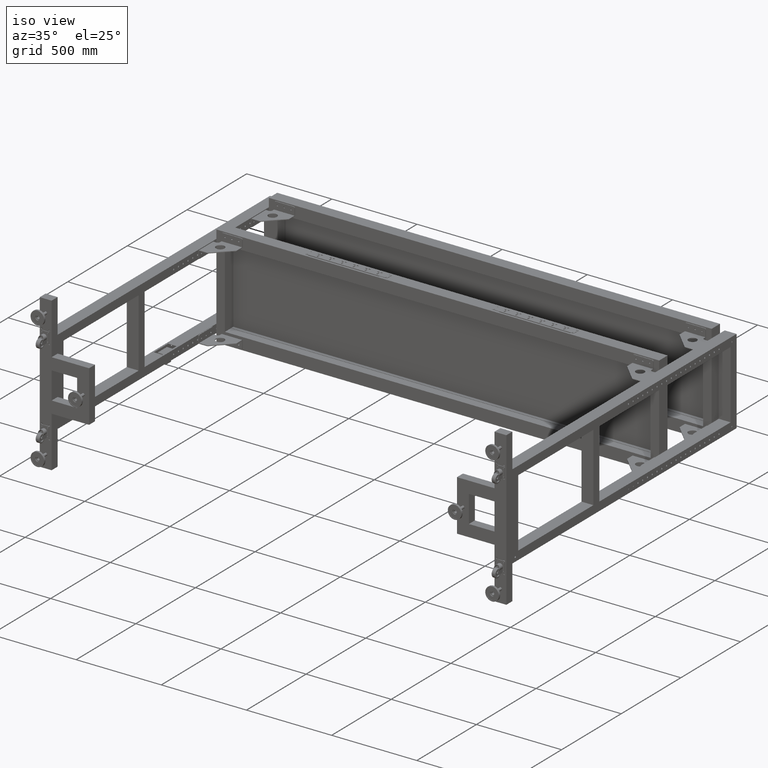
[diagram: clean part render]
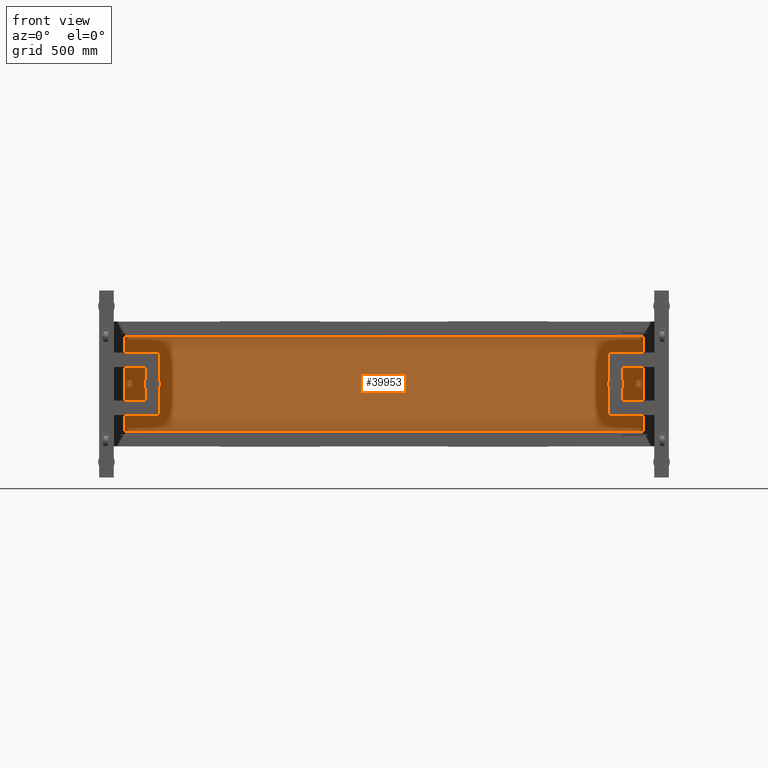
[diagram: tour spotlight — one face highlighted and labeled with its STEP entity id]
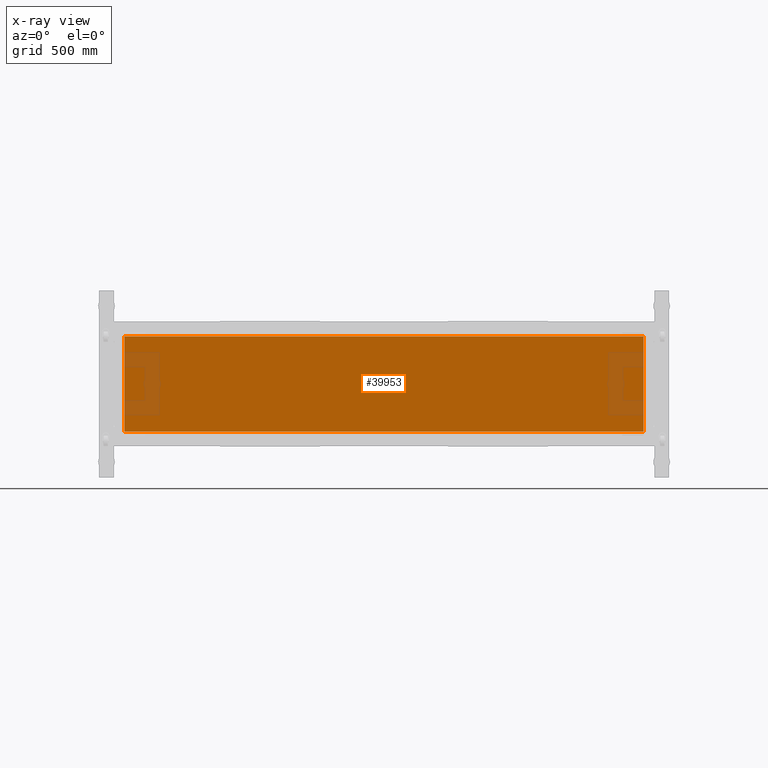
[diagram: x-ray of the same camera — body ghosted, this tour face saturated]
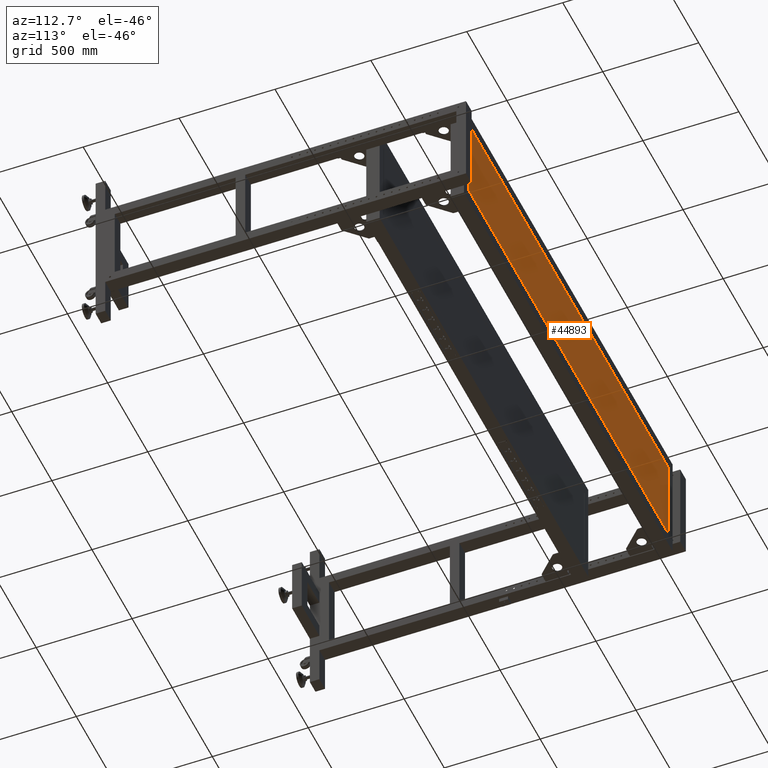
[diagram: tour spotlight — one face highlighted and labeled with its STEP entity id]
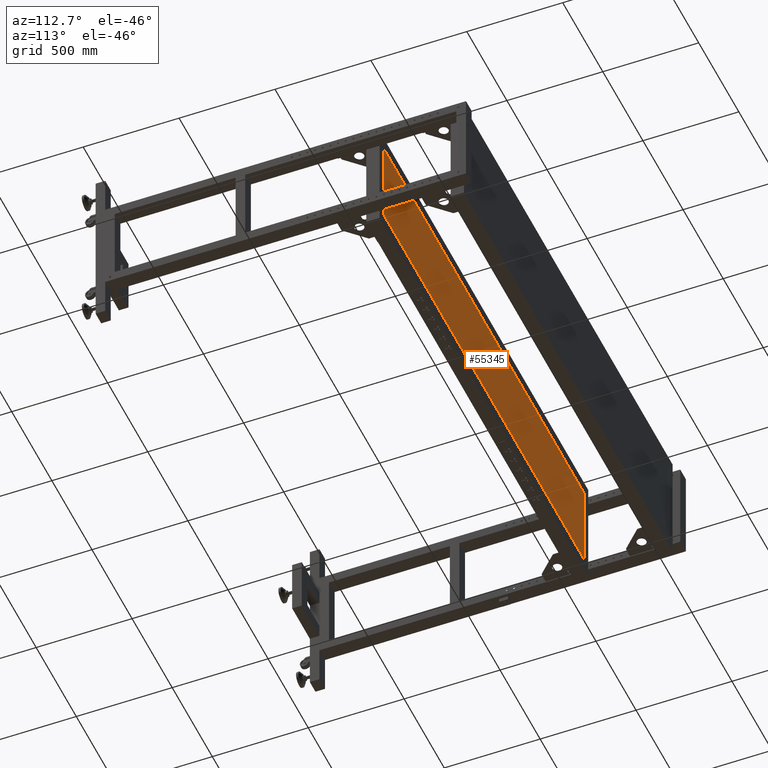
[diagram: tour spotlight — one face highlighted and labeled with its STEP entity id]
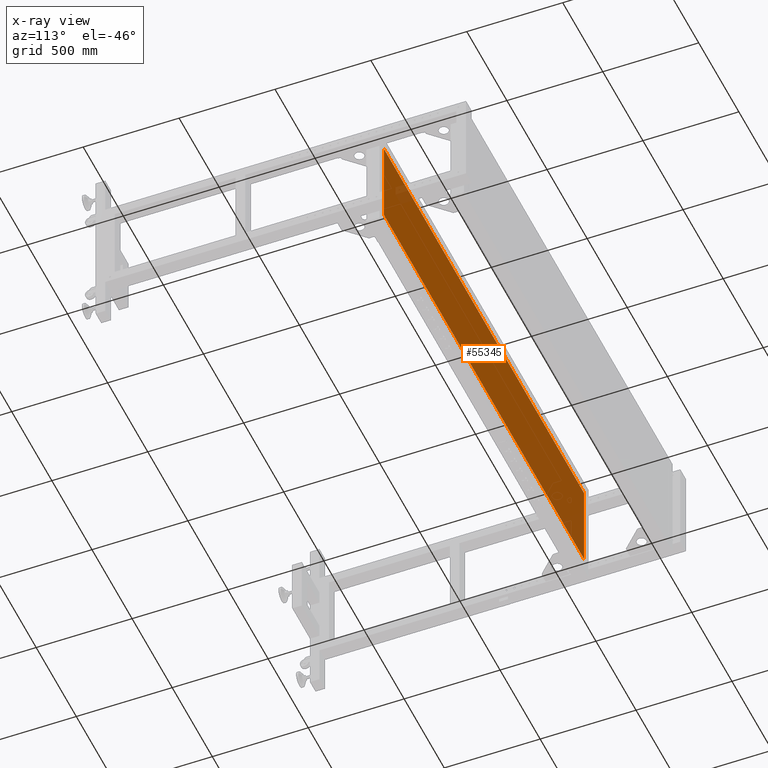
[diagram: x-ray of the same camera — body ghosted, this tour face saturated]
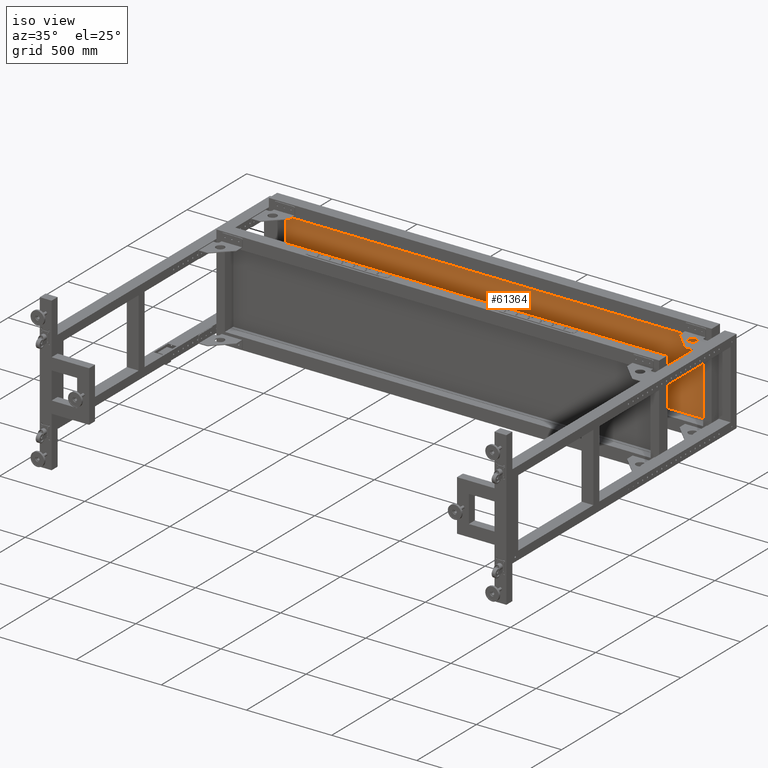
[diagram: tour spotlight — one face highlighted and labeled with its STEP entity id]
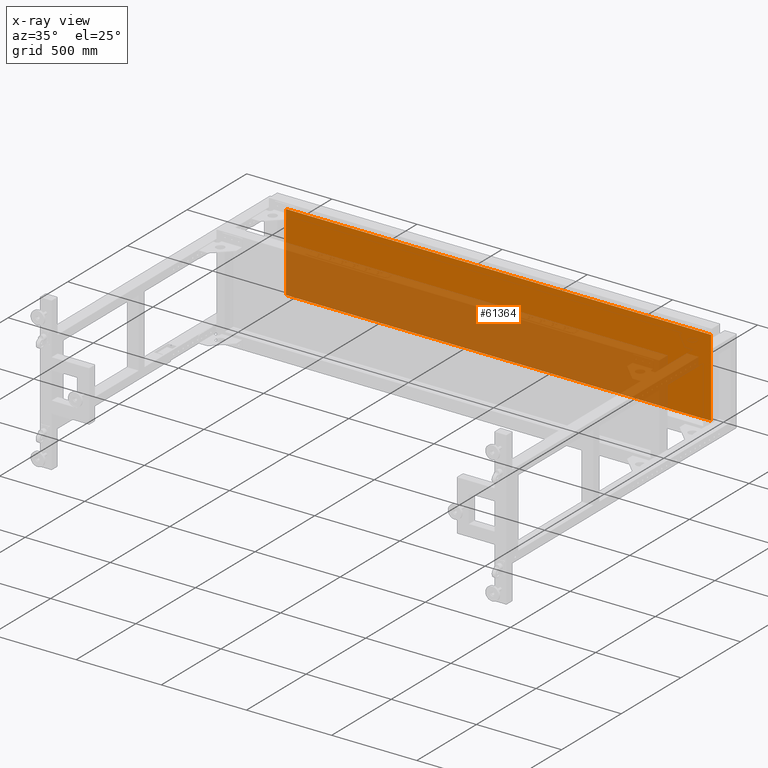
[diagram: x-ray of the same camera — body ghosted, this tour face saturated]
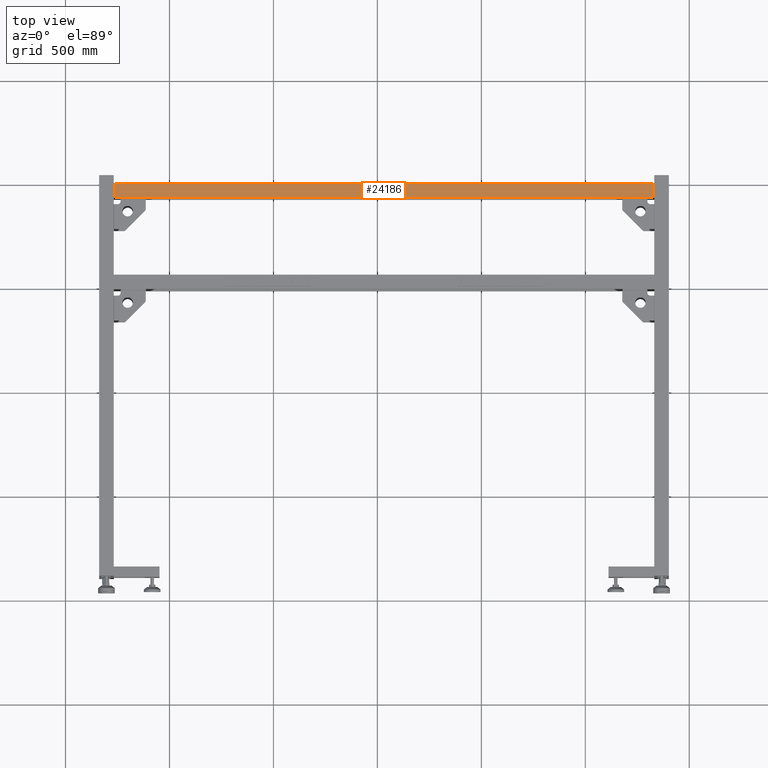
[diagram: tour spotlight — one face highlighted and labeled with its STEP entity id]
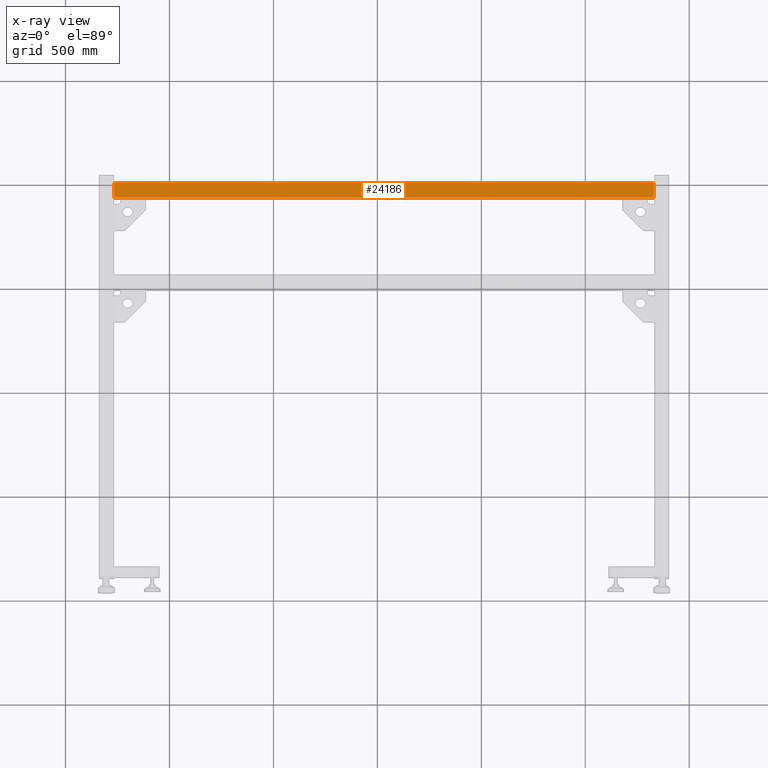
[diagram: x-ray of the same camera — body ghosted, this tour face saturated]
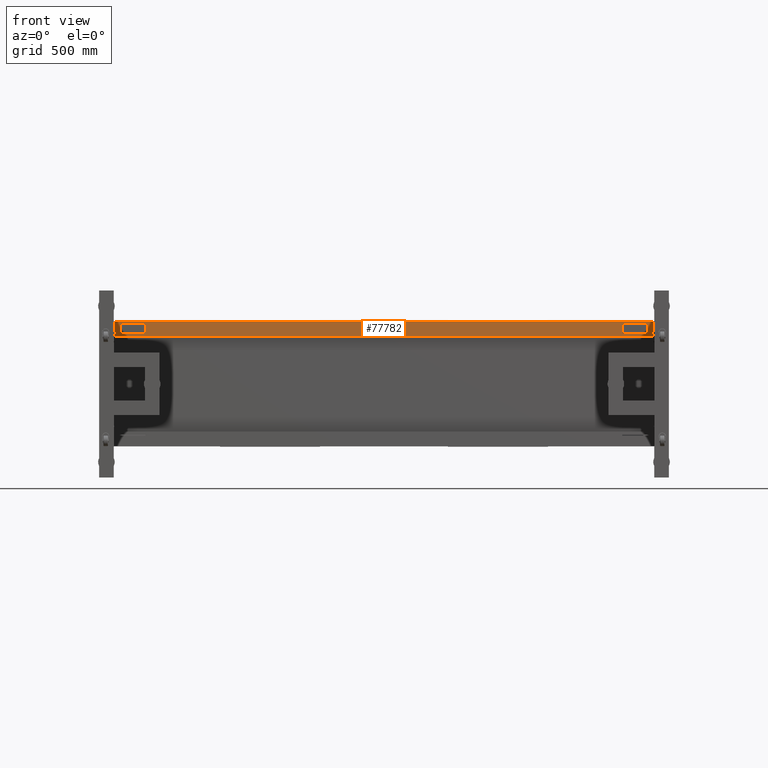
[diagram: tour spotlight — one face highlighted and labeled with its STEP entity id]
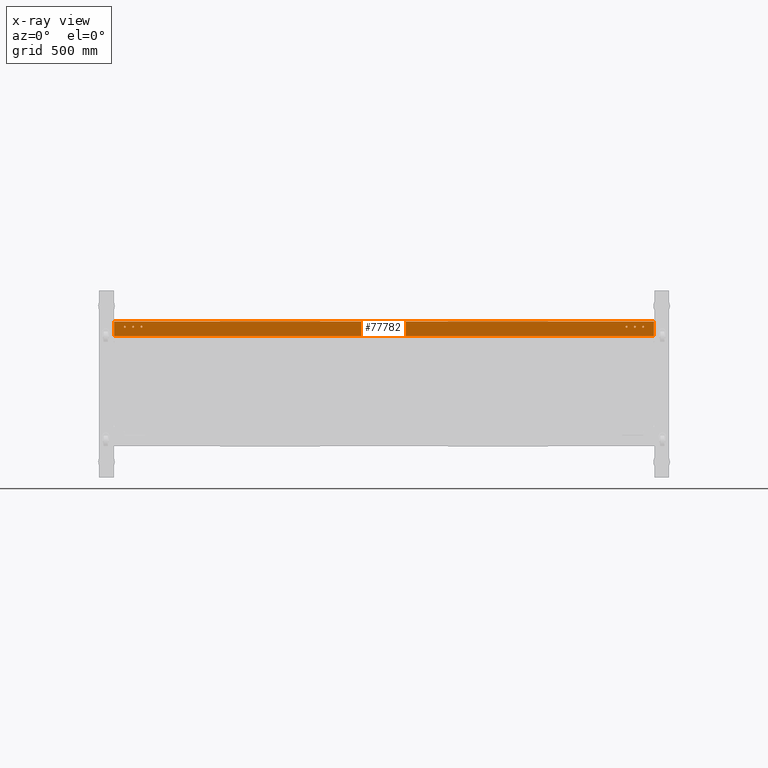
[diagram: x-ray of the same camera — body ghosted, this tour face saturated]
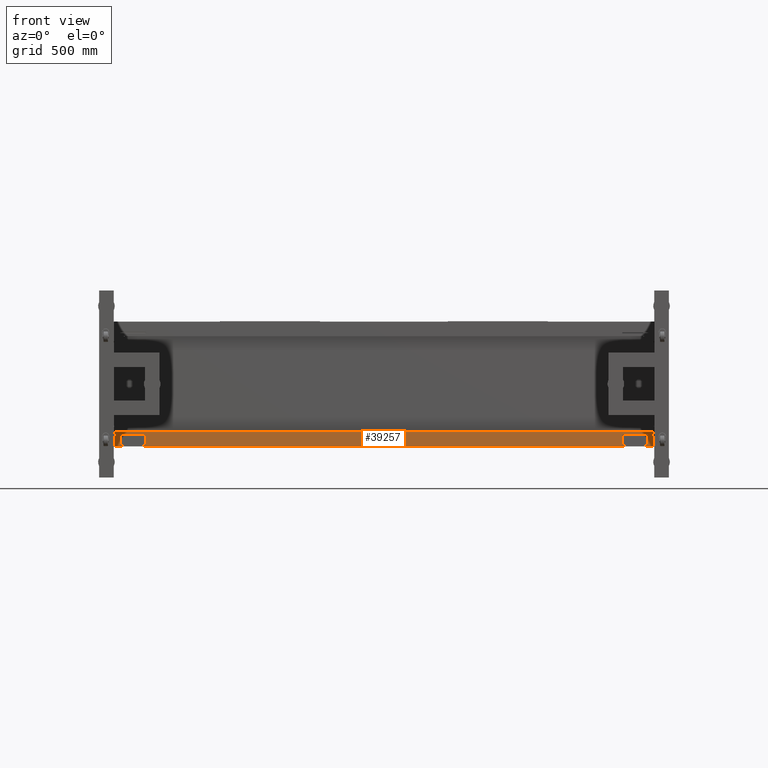
[diagram: tour spotlight — one face highlighted and labeled with its STEP entity id]
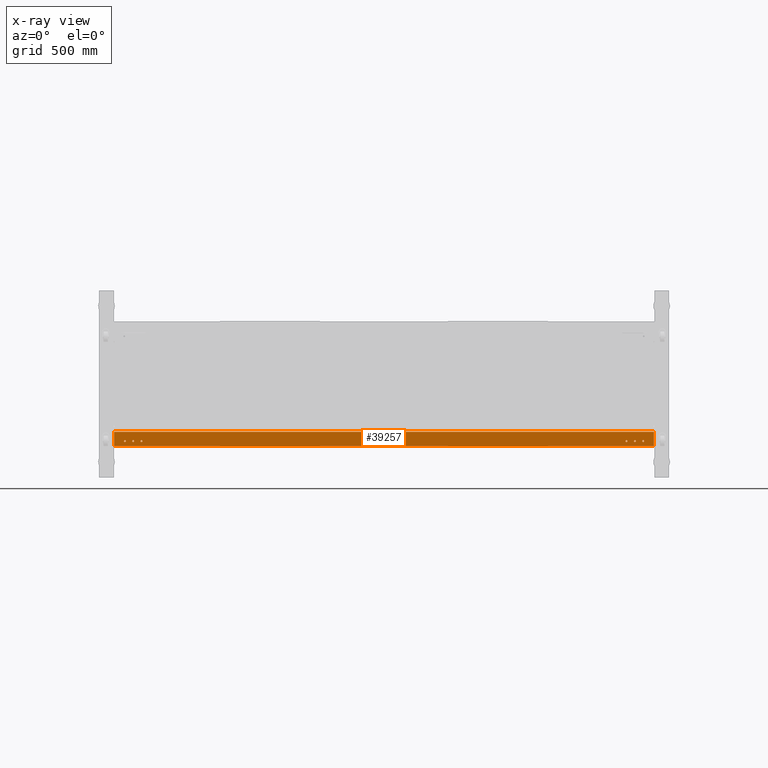
[diagram: x-ray of the same camera — body ghosted, this tour face saturated]
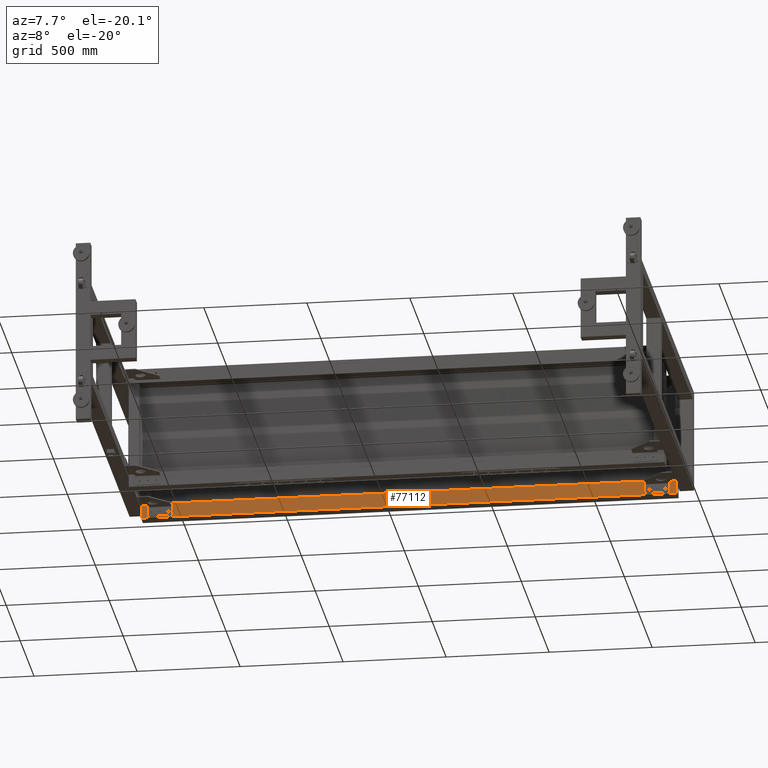
[diagram: tour spotlight — one face highlighted and labeled with its STEP entity id]
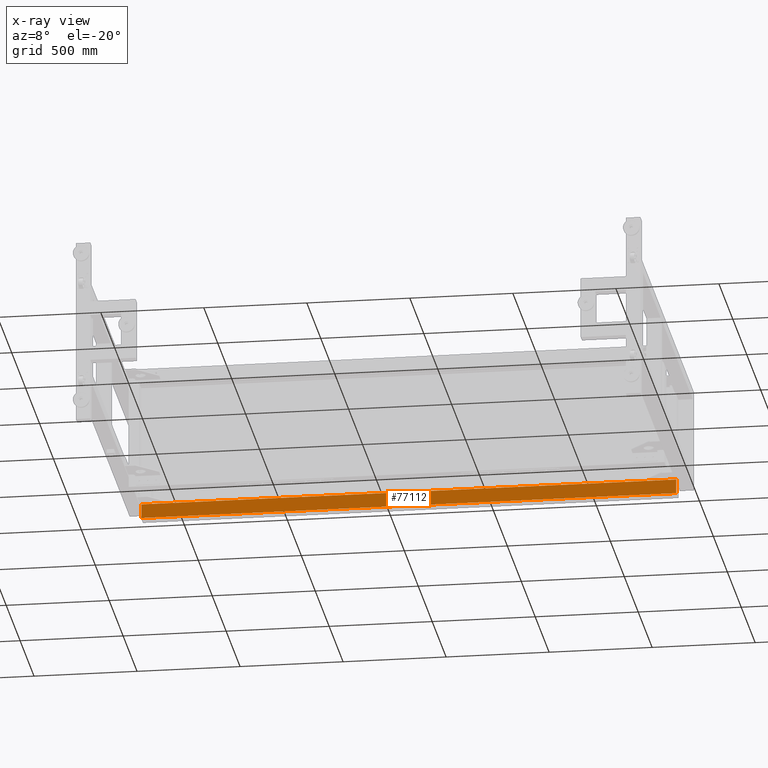
[diagram: x-ray of the same camera — body ghosted, this tour face saturated]
A machine part: a face-by-face anatomy tour. The part has 2555 B-rep faces; the first image is the clean iso view, then the 8 largest visible faces are spotlighted one at a time (largest first), each with its STEP entity span.

Face 1 — front view, entity #39953. An x-ray twin of the same camera follows (body ghosted, this face saturated) — the face is partly hidden behind the body. In plain terms, the highlighted planar face has unit normal (-0, 1, -0).
Definition (entity closure, byte-faithful):
#1031 = ORIENTED_EDGE ( 'NONE', *, *, #65818, .F. ) ;
#1144 = VERTEX_POINT ( 'NONE', #2076 ) ;
#2076 = CARTESIAN_POINT ( 'NONE',  ( 1280.317512562815864, 555.4410804020127443, -228.4899999999998954 ) ) ;
#6296 = ORIENTED_EDGE ( 'NONE', *, *, #29893, .T. ) ;
#6955 = EDGE_LOOP ( 'NONE', ( #8129, #1031, #62932, #6296 ) ) ;
#8129 = ORIENTED_EDGE ( 'NONE', *, *, #68477, .T. ) ;
#8204 = DIRECTION ( 'NONE',  ( 1.000000000000000000, 2.399989573374237993E-16, 0.000000000000000000 ) ) ;
#8607 = VECTOR ( 'NONE', #37894, 1000.000000000000000 ) ;
#16177 = CARTESIAN_POINT ( 'NONE',  ( 1280.317512562815864, 555.4410804020127443, -228.4899999999998954 ) ) ;
#19455 = CARTESIAN_POINT ( 'NONE',  ( -1216.662487437185973, 555.4410804020128580, 228.4900000000081093 ) ) ;
#20642 = DIRECTION ( 'NONE',  ( -2.399989573374239092E-31, 1.000000000000000472E-15, 1.000000000000000000 ) ) ;
#26593 = LINE ( 'NONE', #51150, #49807 ) ;
#28444 = DIRECTION ( 'NONE',  ( -2.399989573374239092E-31, 1.000000000000000472E-15, 1.000000000000000000 ) ) ;
#29893 = EDGE_CURVE ( 'NONE', #1144, #36823, #75762, .T. ) ;
#30938 = VECTOR ( 'NONE', #20642, 1000.000000000000000 ) ;
#33295 = CARTESIAN_POINT ( 'NONE',  ( 81.82751256281595431, 555.4410804020126307, 1.110223024625156540E-13 ) ) ;
#33693 = DIRECTION ( 'NONE',  ( -2.399989573374237993E-16, 1.000000000000000000, -1.000000000000000472E-15 ) ) ;
#36097 = LINE ( 'NONE', #56889, #42954 ) ;
#36823 = VERTEX_POINT ( 'NONE', #69905 ) ;
#37894 = DIRECTION ( 'NONE',  ( -1.000000000000000000, -2.399989573374237993E-16, 0.000000000000000000 ) ) ;
#39953 = ADVANCED_FACE ( 'NONE', ( #59035 ), #45362, .F. ) ;
#41665 = CARTESIAN_POINT ( 'NONE',  ( -1216.662487437185973, 555.4410804020124033, -228.4899999999998954 ) ) ;
#42926 = VERTEX_POINT ( 'NONE', #19455 ) ;
#42954 = VECTOR ( 'NONE', #8204, 1000.000000000000000 ) ;
#43129 = LINE ( 'NONE', #49577, #8607 ) ;
#43966 = EDGE_CURVE ( 'NONE', #67930, #1144, #36097, .T. ) ;
#45362 = PLANE ( 'NONE',  #56583 ) ;
#49577 = CARTESIAN_POINT ( 'NONE',  ( 1280.317512562815864, 555.4410804020131991, 228.4900000000001228 ) ) ;
#49807 = VECTOR ( 'NONE', #75689, 1000.000000000000000 ) ;
#51150 = CARTESIAN_POINT ( 'NONE',  ( -1216.662487437185973, 555.4410804020124033, -228.4899999999998954 ) ) ;
#56583 = AXIS2_PLACEMENT_3D ( 'NONE', #33295, #33693, #28444 ) ;
#56889 = CARTESIAN_POINT ( 'NONE',  ( -1116.662487437184154, 555.4410804020121759, -228.4899999999998954 ) ) ;
#59035 = FACE_OUTER_BOUND ( 'NONE', #6955, .T. ) ;
#62932 = ORIENTED_EDGE ( 'NONE', *, *, #43966, .T. ) ;
#65818 = EDGE_CURVE ( 'NONE', #67930, #42926, #26593, .T. ) ;
#67930 = VERTEX_POINT ( 'NONE', #41665 ) ;
#68477 = EDGE_CURVE ( 'NONE', #36823, #42926, #43129, .T. ) ;
#69905 = CARTESIAN_POINT ( 'NONE',  ( 1280.317512562815864, 555.4410804020131991, 228.4900000000081093 ) ) ;
#75689 = DIRECTION ( 'NONE',  ( 0.000000000000000000, 1.000000000000000472E-15, 1.000000000000000000 ) ) ;
#75762 = LINE ( 'NONE', #16177, #30938 ) ;

Face 2 — auxiliary view, entity #44893. In plain terms, the highlighted planar face has unit normal (-0, 1, 0).
Definition (entity closure, byte-faithful):
#3037 = LINE ( 'NONE', #15093, #28382 ) ;
#3164 = DIRECTION ( 'NONE',  ( 2.399989573374239092E-31, -1.000000000000000472E-15, 1.000000000000000000 ) ) ;
#3723 = VERTEX_POINT ( 'NONE', #53555 ) ;
#8582 = VERTEX_POINT ( 'NONE', #65738 ) ;
#13961 = VERTEX_POINT ( 'NONE', #58753 ) ;
#15093 = CARTESIAN_POINT ( 'NONE',  ( -1216.662487437185973, 996.9410804020130854, -228.4899999999988438 ) ) ;
#17920 = ORIENTED_EDGE ( 'NONE', *, *, #68031, .F. ) ;
#18300 = VERTEX_POINT ( 'NONE', #73125 ) ;
#18849 = VECTOR ( 'NONE', #19681, 1000.000000000000000 ) ;
#19681 = DIRECTION ( 'NONE',  ( -1.000000000000000000, -2.399989573374237993E-16, 0.000000000000000000 ) ) ;
#25676 = AXIS2_PLACEMENT_3D ( 'NONE', #50644, #32928, #70749 ) ;
#25981 = EDGE_CURVE ( 'NONE', #3723, #13961, #74807, .T. ) ;
#26892 = CARTESIAN_POINT ( 'NONE',  ( 1280.317512562815864, 996.9410804020134265, -228.4899999999988438 ) ) ;
#28382 = VECTOR ( 'NONE', #51714, 1000.000000000000000 ) ;
#32546 = FACE_OUTER_BOUND ( 'NONE', #74235, .T. ) ;
#32928 = DIRECTION ( 'NONE',  ( -2.399989573374237993E-16, 1.000000000000000000, 1.000000000000000472E-15 ) ) ;
#32939 = VECTOR ( 'NONE', #41292, 1000.000000000000000 ) ;
#34865 = CARTESIAN_POINT ( 'NONE',  ( -1116.662487437184154, 996.9410804020127443, -228.4899999999988438 ) ) ;
#38988 = CARTESIAN_POINT ( 'NONE',  ( 1280.317512562815864, 996.9410804020129717, 228.4900000000011744 ) ) ;
#39825 = VECTOR ( 'NONE', #3164, 1000.000000000000000 ) ;
#40409 = EDGE_CURVE ( 'NONE', #8582, #13961, #3037, .T. ) ;
#41292 = DIRECTION ( 'NONE',  ( 1.000000000000000000, 2.399989573374237993E-16, 0.000000000000000000 ) ) ;
#44891 = EDGE_CURVE ( 'NONE', #18300, #3723, #58280, .T. ) ;
#44893 = ADVANCED_FACE ( 'NONE', ( #32546 ), #75990, .T. ) ;
#48838 = ORIENTED_EDGE ( 'NONE', *, *, #44891, .F. ) ;
#49403 = ORIENTED_EDGE ( 'NONE', *, *, #25981, .F. ) ;
#50644 = CARTESIAN_POINT ( 'NONE',  ( 81.82751256281584062, 996.9410804020128580, 1.167234175856414311E-12 ) ) ;
#51714 = DIRECTION ( 'NONE',  ( 0.000000000000000000, -1.000000000000000472E-15, 1.000000000000000000 ) ) ;
#53555 = CARTESIAN_POINT ( 'NONE',  ( 1280.317512562815864, 996.9410804020129717, 228.4900000000011744 ) ) ;
#58280 = LINE ( 'NONE', #26892, #39825 ) ;
#58753 = CARTESIAN_POINT ( 'NONE',  ( -1216.662487437185973, 996.9410804020126307, 228.4900000000011744 ) ) ;
#60184 = ORIENTED_EDGE ( 'NONE', *, *, #40409, .T. ) ;
#65738 = CARTESIAN_POINT ( 'NONE',  ( -1216.662487437185973, 996.9410804020130854, -228.4899999999988438 ) ) ;
#68031 = EDGE_CURVE ( 'NONE', #8582, #18300, #71447, .T. ) ;
#70749 = DIRECTION ( 'NONE',  ( 2.399989573374239092E-31, -1.000000000000000472E-15, 1.000000000000000000 ) ) ;
#71447 = LINE ( 'NONE', #34865, #32939 ) ;
#73125 = CARTESIAN_POINT ( 'NONE',  ( 1280.317512562815864, 996.9410804020134265, -228.4899999999988438 ) ) ;
#74235 = EDGE_LOOP ( 'NONE', ( #17920, #60184, #49403, #48838 ) ) ;
#74807 = LINE ( 'NONE', #38988, #18849 ) ;
#75990 = PLANE ( 'NONE',  #25676 ) ;

Face 3 — auxiliary view, entity #55345. An x-ray twin of the same camera follows (body ghosted, this face saturated) — the face is partly hidden behind the body. In plain terms, the highlighted planar face has unit normal (-0, 1, -0).
Definition (entity closure, byte-faithful):
#607 = ORIENTED_EDGE ( 'NONE', *, *, #74471, .F. ) ;
#4995 = CARTESIAN_POINT ( 'NONE',  ( -1216.662487437185973, 556.9410804020125170, -228.4899999999998954 ) ) ;
#9007 = CARTESIAN_POINT ( 'NONE',  ( 1280.317512562815864, 556.9410804020133128, 228.4900000000001228 ) ) ;
#9184 = ORIENTED_EDGE ( 'NONE', *, *, #27327, .T. ) ;
#10150 = CARTESIAN_POINT ( 'NONE',  ( 1280.317512562815864, 556.9410804020128580, -228.4899999999998954 ) ) ;
#10188 = LINE ( 'NONE', #9007, #69461 ) ;
#11814 = DIRECTION ( 'NONE',  ( 0.000000000000000000, 1.000000000000000472E-15, 1.000000000000000000 ) ) ;
#11828 = DIRECTION ( 'NONE',  ( 1.000000000000000000, 2.399989573374237993E-16, 0.000000000000000000 ) ) ;
#15340 = VECTOR ( 'NONE', #11828, 1000.000000000000000 ) ;
#16341 = VECTOR ( 'NONE', #11814, 1000.000000000000000 ) ;
#19219 = AXIS2_PLACEMENT_3D ( 'NONE', #34485, #75957, #52194 ) ;
#21888 = DIRECTION ( 'NONE',  ( -2.399989573374239092E-31, 1.000000000000000472E-15, 1.000000000000000000 ) ) ;
#24095 = EDGE_CURVE ( 'NONE', #76852, #54326, #10188, .T. ) ;
#27327 = EDGE_CURVE ( 'NONE', #55632, #54326, #35545, .T. ) ;
#28279 = ORIENTED_EDGE ( 'NONE', *, *, #24095, .F. ) ;
#28405 = EDGE_LOOP ( 'NONE', ( #28279, #607, #41047, #9184 ) ) ;
#28483 = EDGE_CURVE ( 'NONE', #55632, #76241, #60114, .T. ) ;
#30514 = CARTESIAN_POINT ( 'NONE',  ( 1280.317512562815864, 556.9410804020133128, 228.4900000000001228 ) ) ;
#34078 = FACE_OUTER_BOUND ( 'NONE', #28405, .T. ) ;
#34485 = CARTESIAN_POINT ( 'NONE',  ( 81.82751256281594010, 556.9410804020127443, 1.095223024625156604E-13 ) ) ;
#35545 = LINE ( 'NONE', #4995, #16341 ) ;
#41047 = ORIENTED_EDGE ( 'NONE', *, *, #28483, .F. ) ;
#45622 = LINE ( 'NONE', #70178, #64595 ) ;
#52194 = DIRECTION ( 'NONE',  ( -2.399989573374239092E-31, 1.000000000000000472E-15, 1.000000000000000000 ) ) ;
#54326 = VERTEX_POINT ( 'NONE', #61003 ) ;
#55345 = ADVANCED_FACE ( 'NONE', ( #34078 ), #57446, .T. ) ;
#55632 = VERTEX_POINT ( 'NONE', #74674 ) ;
#57446 = PLANE ( 'NONE',  #19219 ) ;
#60114 = LINE ( 'NONE', #66145, #15340 ) ;
#61003 = CARTESIAN_POINT ( 'NONE',  ( -1216.662487437185973, 556.9410804020129717, 228.4900000000001228 ) ) ;
#64595 = VECTOR ( 'NONE', #21888, 1000.000000000000000 ) ;
#66145 = CARTESIAN_POINT ( 'NONE',  ( -1116.662487437184154, 556.9410804020121759, -228.4899999999998954 ) ) ;
#69461 = VECTOR ( 'NONE', #77744, 1000.000000000000000 ) ;
#70178 = CARTESIAN_POINT ( 'NONE',  ( 1280.317512562815864, 556.9410804020128580, -228.4899999999998954 ) ) ;
#74471 = EDGE_CURVE ( 'NONE', #76241, #76852, #45622, .T. ) ;
#74674 = CARTESIAN_POINT ( 'NONE',  ( -1216.662487437185973, 556.9410804020125170, -228.4899999999998954 ) ) ;
#75957 = DIRECTION ( 'NONE',  ( -2.399989573374237993E-16, 1.000000000000000000, -1.000000000000000472E-15 ) ) ;
#76241 = VERTEX_POINT ( 'NONE', #10150 ) ;
#76852 = VERTEX_POINT ( 'NONE', #30514 ) ;
#77744 = DIRECTION ( 'NONE',  ( -1.000000000000000000, -2.399989573374237993E-16, 0.000000000000000000 ) ) ;

Face 4 — iso view, entity #61364. An x-ray twin of the same camera follows (body ghosted, this face saturated) — the face is partly hidden behind the body. In plain terms, the highlighted planar face has unit normal (-0, 1, 0).
Definition (entity closure, byte-faithful):
#81 = PLANE ( 'NONE',  #49406 ) ;
#890 = DIRECTION ( 'NONE',  ( 1.000000000000000000, 2.399989573374237993E-16, 0.000000000000000000 ) ) ;
#3896 = VECTOR ( 'NONE', #8543, 1000.000000000000000 ) ;
#4003 = VERTEX_POINT ( 'NONE', #61040 ) ;
#4903 = CARTESIAN_POINT ( 'NONE',  ( 1280.317512562815864, 995.4410804020134265, -228.4899999999988438 ) ) ;
#5757 = CARTESIAN_POINT ( 'NONE',  ( -1216.662487437185973, 995.4410804020126307, 228.4900000000091609 ) ) ;
#8543 = DIRECTION ( 'NONE',  ( 0.000000000000000000, -1.000000000000000472E-15, 1.000000000000000000 ) ) ;
#9445 = EDGE_LOOP ( 'NONE', ( #66561, #15034, #33300, #9548 ) ) ;
#9548 = ORIENTED_EDGE ( 'NONE', *, *, #39537, .F. ) ;
#10909 = DIRECTION ( 'NONE',  ( 2.399989573374239092E-31, -1.000000000000000472E-15, 1.000000000000000000 ) ) ;
#12816 = VECTOR ( 'NONE', #890, 1000.000000000000000 ) ;
#12940 = FACE_OUTER_BOUND ( 'NONE', #9445, .T. ) ;
#15034 = ORIENTED_EDGE ( 'NONE', *, *, #22279, .T. ) ;
#17544 = EDGE_CURVE ( 'NONE', #32791, #21729, #63612, .T. ) ;
#17761 = DIRECTION ( 'NONE',  ( -2.399989573374237993E-16, 1.000000000000000000, 1.000000000000000472E-15 ) ) ;
#21729 = VERTEX_POINT ( 'NONE', #33974 ) ;
#22279 = EDGE_CURVE ( 'NONE', #21729, #4003, #35450, .T. ) ;
#22311 = CARTESIAN_POINT ( 'NONE',  ( 1280.317512562815864, 995.4410804020129717, 228.4900000000011744 ) ) ;
#22907 = VECTOR ( 'NONE', #10909, 1000.000000000000000 ) ;
#24599 = CARTESIAN_POINT ( 'NONE',  ( 81.82751256281584062, 995.4410804020128580, 1.165734175856414367E-12 ) ) ;
#27007 = CARTESIAN_POINT ( 'NONE',  ( -1116.662487437184154, 995.4410804020127443, -228.4899999999988438 ) ) ;
#32791 = VERTEX_POINT ( 'NONE', #33745 ) ;
#33082 = CARTESIAN_POINT ( 'NONE',  ( -1216.662487437185973, 995.4410804020130854, -228.4899999999988438 ) ) ;
#33300 = ORIENTED_EDGE ( 'NONE', *, *, #55871, .T. ) ;
#33745 = CARTESIAN_POINT ( 'NONE',  ( -1216.662487437185973, 995.4410804020130854, -228.4899999999988438 ) ) ;
#33974 = CARTESIAN_POINT ( 'NONE',  ( 1280.317512562815864, 995.4410804020134265, -228.4899999999988438 ) ) ;
#35450 = LINE ( 'NONE', #4903, #22907 ) ;
#39537 = EDGE_CURVE ( 'NONE', #32791, #48134, #51980, .T. ) ;
#46846 = DIRECTION ( 'NONE',  ( -1.000000000000000000, -2.399989573374237993E-16, 0.000000000000000000 ) ) ;
#48134 = VERTEX_POINT ( 'NONE', #5757 ) ;
#49406 = AXIS2_PLACEMENT_3D ( 'NONE', #24599, #17761, #55579 ) ;
#51980 = LINE ( 'NONE', #33082, #3896 ) ;
#54865 = LINE ( 'NONE', #22311, #61679 ) ;
#55579 = DIRECTION ( 'NONE',  ( 2.399989573374239092E-31, -1.000000000000000472E-15, 1.000000000000000000 ) ) ;
#55871 = EDGE_CURVE ( 'NONE', #4003, #48134, #54865, .T. ) ;
#61040 = CARTESIAN_POINT ( 'NONE',  ( 1280.317512562815864, 995.4410804020129717, 228.4900000000091609 ) ) ;
#61364 = ADVANCED_FACE ( 'NONE', ( #12940 ), #81, .F. ) ;
#61679 = VECTOR ( 'NONE', #46846, 1000.000000000000000 ) ;
#63612 = LINE ( 'NONE', #27007, #12816 ) ;
#66561 = ORIENTED_EDGE ( 'NONE', *, *, #17544, .T. ) ;

Face 5 — top view, entity #24186. An x-ray twin of the same camera follows (body ghosted, this face saturated) — the face is partly hidden behind the body. In plain terms, the highlighted planar face has unit normal (-0, 0, -1).
Definition (entity closure, byte-faithful):
#1910 = EDGE_CURVE ( 'NONE', #18805, #78975, #69788, .T. ) ;
#2599 = CARTESIAN_POINT ( 'NONE',  ( 1329.827512562815855, 926.9410804020120622, 300.0000000000009095 ) ) ;
#4945 = DIRECTION ( 'NONE',  ( -2.399989573374237993E-16, 1.000000000000000000, 3.603491776919587486E-15 ) ) ;
#5223 = CARTESIAN_POINT ( 'NONE',  ( -1266.172487437185964, 996.9410804020118348, 300.0000000000011937 ) ) ;
#8209 = DIRECTION ( 'NONE',  ( -1.000000000000000000, -2.399989573374237993E-16, 0.000000000000000000 ) ) ;
#12896 = VERTEX_POINT ( 'NONE', #5223 ) ;
#13043 = EDGE_LOOP ( 'NONE', ( #25307, #53794, #51171, #29544 ) ) ;
#14639 = CARTESIAN_POINT ( 'NONE',  ( 1329.827512562815855, 926.9410804020120622, 300.0000000000009095 ) ) ;
#15911 = EDGE_CURVE ( 'NONE', #18805, #23924, #69762, .T. ) ;
#17750 = DIRECTION ( 'NONE',  ( -1.000000000000000000, -2.399989573374237993E-16, 0.000000000000000000 ) ) ;
#18805 = VERTEX_POINT ( 'NONE', #44312 ) ;
#23010 = VECTOR ( 'NONE', #27124, 1000.000000000000000 ) ;
#23924 = VERTEX_POINT ( 'NONE', #75375 ) ;
#24186 = ADVANCED_FACE ( 'NONE', ( #60463 ), #35897, .F. ) ;
#25307 = ORIENTED_EDGE ( 'NONE', *, *, #15911, .F. ) ;
#25913 = VECTOR ( 'NONE', #50072, 1000.000000000000000 ) ;
#27124 = DIRECTION ( 'NONE',  ( -2.399989573374237993E-16, 1.000000000000000000, 3.603491776919587486E-15 ) ) ;
#29544 = ORIENTED_EDGE ( 'NONE', *, *, #46646, .F. ) ;
#35897 = PLANE ( 'NONE',  #56588 ) ;
#41890 = LINE ( 'NONE', #65684, #43742 ) ;
#42310 = DIRECTION ( 'NONE',  ( -8.648342692346816226E-31, 3.603491776919587486E-15, -1.000000000000000000 ) ) ;
#43742 = VECTOR ( 'NONE', #17750, 1000.000000000000000 ) ;
#44312 = CARTESIAN_POINT ( 'NONE',  ( 1329.827512562815855, 926.9410804020120622, 300.0000000000009095 ) ) ;
#46646 = EDGE_CURVE ( 'NONE', #23924, #12896, #73015, .T. ) ;
#50072 = DIRECTION ( 'NONE',  ( 0.000000000000000000, 1.000000000000000000, 3.603491776919587486E-15 ) ) ;
#51171 = ORIENTED_EDGE ( 'NONE', *, *, #56308, .T. ) ;
#53794 = ORIENTED_EDGE ( 'NONE', *, *, #1910, .T. ) ;
#56308 = EDGE_CURVE ( 'NONE', #78975, #12896, #41890, .T. ) ;
#56313 = CARTESIAN_POINT ( 'NONE',  ( 1329.827512562815855, 996.9410804020121759, 300.0000000000011937 ) ) ;
#56588 = AXIS2_PLACEMENT_3D ( 'NONE', #67652, #42310, #4945 ) ;
#60463 = FACE_OUTER_BOUND ( 'NONE', #13043, .T. ) ;
#65684 = CARTESIAN_POINT ( 'NONE',  ( 1329.827512562815855, 996.9410804020121759, 300.0000000000011937 ) ) ;
#67009 = CARTESIAN_POINT ( 'NONE',  ( -1266.172487437185964, 926.9410804020117212, 300.0000000000009095 ) ) ;
#67652 = CARTESIAN_POINT ( 'NONE',  ( 1329.827512562815855, 926.9410804020120622, 300.0000000000009095 ) ) ;
#69762 = LINE ( 'NONE', #14639, #72363 ) ;
#69788 = LINE ( 'NONE', #2599, #23010 ) ;
#72363 = VECTOR ( 'NONE', #8209, 1000.000000000000000 ) ;
#73015 = LINE ( 'NONE', #67009, #25913 ) ;
#75375 = CARTESIAN_POINT ( 'NONE',  ( -1266.172487437185964, 926.9410804020117212, 300.0000000000009095 ) ) ;
#78975 = VERTEX_POINT ( 'NONE', #56313 ) ;

Face 6 — front view, entity #77782. An x-ray twin of the same camera follows (body ghosted, this face saturated) — the face is partly hidden behind the body. In plain terms, the highlighted planar face has unit normal (-0, 1, 0).
Definition (entity closure, byte-faithful):
#1372 = EDGE_CURVE ( 'NONE', #63502, #43812, #55683, .T. ) ;
#1491 = AXIS2_PLACEMENT_3D ( 'NONE', #5958, #24052, #16844 ) ;
#1931 = CARTESIAN_POINT ( 'NONE',  ( 1233.827512562815855, 486.9410804020110959, 274.9999999999998863 ) ) ;
#1954 = CARTESIAN_POINT ( 'NONE',  ( 1282.827512562815855, 486.9410804020110959, 274.9999999999998863 ) ) ;
#2940 = VECTOR ( 'NONE', #10054, 1000.000000000000000 ) ;
#3889 = DIRECTION ( 'NONE',  ( 1.000000000000000000, 0.000000000000000000, 0.000000000000000000 ) ) ;
#4734 = VERTEX_POINT ( 'NONE', #1931 ) ;
#5636 = CARTESIAN_POINT ( 'NONE',  ( 1198.327512562815855, 486.9410804020110959, 274.9999999999998863 ) ) ;
#5958 = CARTESIAN_POINT ( 'NONE',  ( -1174.672487437186192, 486.9410804020108117, 274.9999999999998863 ) ) ;
#6902 = VERTEX_POINT ( 'NONE', #8191 ) ;
#7025 = EDGE_CURVE ( 'NONE', #76719, #6902, #13784, .T. ) ;
#7065 = DIRECTION ( 'NONE',  ( -1.000000000000000000, 0.000000000000000000, 0.000000000000000000 ) ) ;
#8191 = CARTESIAN_POINT ( 'NONE',  ( -1130.172487437186192, 486.9410804020108117, 274.9999999999998863 ) ) ;
#8401 = AXIS2_PLACEMENT_3D ( 'NONE', #9703, #23350, #72818 ) ;
#8972 = ORIENTED_EDGE ( 'NONE', *, *, #55822, .F. ) ;
#9198 = CARTESIAN_POINT ( 'NONE',  ( 1329.827512562815855, 486.9410804020112664, 229.9999999999998295 ) ) ;
#9703 = CARTESIAN_POINT ( 'NONE',  ( 1238.327512562815855, 486.9410804020110959, 274.9999999999998863 ) ) ;
#9947 = CARTESIAN_POINT ( 'NONE',  ( -1174.672487437186192, 486.9410804020108117, 274.9999999999998863 ) ) ;
#10054 = DIRECTION ( 'NONE',  ( -7.199968720122713773E-31, 2.999999999999999839E-15, -1.000000000000000000 ) ) ;
#10326 = ORIENTED_EDGE ( 'NONE', *, *, #47809, .T. ) ;
#10878 = FACE_BOUND ( 'NONE', #60172, .T. ) ;
#11287 = AXIS2_PLACEMENT_3D ( 'NONE', #28290, #72499, #40763 ) ;
#11694 = LINE ( 'NONE', #49468, #34625 ) ;
#12419 = DIRECTION ( 'NONE',  ( -1.000000000000000000, 0.000000000000000000, 0.000000000000000000 ) ) ;
#12453 = DIRECTION ( 'NONE',  ( -2.399989573374237993E-16, 1.000000000000000000, 2.999999999999999839E-15 ) ) ;
#12686 = DIRECTION ( 'NONE',  ( 1.000000000000000000, 0.000000000000000000, 0.000000000000000000 ) ) ;
#13191 = VERTEX_POINT ( 'NONE', #9198 ) ;
#13582 = CARTESIAN_POINT ( 'NONE',  ( -1166.172487437184145, 486.9410804020107548, 229.9999999999998295 ) ) ;
#13784 = CIRCLE ( 'NONE', #58751, 4.499999999999948486 ) ;
#13974 = DIRECTION ( 'NONE',  ( 0.000000000000000000, -1.000000000000000000, -2.999999999999999839E-15 ) ) ;
#14250 = VERTEX_POINT ( 'NONE', #1954 ) ;
#14781 = LINE ( 'NONE', #13582, #20151 ) ;
#15810 = CARTESIAN_POINT ( 'NONE',  ( -1266.172487437185964, 486.9410804020109822, 229.9999999999998295 ) ) ;
#16122 = FACE_BOUND ( 'NONE', #35015, .T. ) ;
#16688 = CARTESIAN_POINT ( 'NONE',  ( -1166.172487437184145, 486.9410804020105275, 299.9999999999998863 ) ) ;
#16844 = DIRECTION ( 'NONE',  ( -1.000000000000000000, 0.000000000000000000, 0.000000000000000000 ) ) ;
#17713 = CIRCLE ( 'NONE', #11287, 4.499999999999948486 ) ;
#18082 = AXIS2_PLACEMENT_3D ( 'NONE', #61408, #62187, #7065 ) ;
#18501 = DIRECTION ( 'NONE',  ( 0.000000000000000000, 2.999999999999999839E-15, -1.000000000000000000 ) ) ;
#18683 = EDGE_CURVE ( 'NONE', #14250, #22524, #32034, .T. ) ;
#19024 = EDGE_CURVE ( 'NONE', #54660, #72989, #11694, .T. ) ;
#20151 = VECTOR ( 'NONE', #62674, 1000.000000000000000 ) ;
#21276 = EDGE_LOOP ( 'NONE', ( #37727, #66714 ) ) ;
#21526 = ORIENTED_EDGE ( 'NONE', *, *, #34059, .T. ) ;
#22165 = FACE_BOUND ( 'NONE', #36050, .T. ) ;
#22381 = DIRECTION ( 'NONE',  ( -1.000000000000000000, 0.000000000000000000, 0.000000000000000000 ) ) ;
#22524 = VERTEX_POINT ( 'NONE', #23751 ) ;
#23350 = DIRECTION ( 'NONE',  ( -2.399989573374237993E-16, 1.000000000000000000, 2.999999999999999839E-15 ) ) ;
#23751 = CARTESIAN_POINT ( 'NONE',  ( 1273.827512562815855, 486.9410804020110959, 274.9999999999998863 ) ) ;
#24052 = DIRECTION ( 'NONE',  ( 0.000000000000000000, -1.000000000000000000, -2.999999999999999839E-15 ) ) ;
#24342 = DIRECTION ( 'NONE',  ( -2.399989573374237993E-16, 1.000000000000000000, 2.999999999999999839E-15 ) ) ;
#24912 = EDGE_CURVE ( 'NONE', #43812, #63502, #71741, .T. ) ;
#25311 = DIRECTION ( 'NONE',  ( 1.000000000000000000, 2.399989573374237993E-16, 0.000000000000000000 ) ) ;
#26617 = DIRECTION ( 'NONE',  ( -2.399989573374237993E-16, 1.000000000000000000, 2.999999999999999839E-15 ) ) ;
#28072 = CARTESIAN_POINT ( 'NONE',  ( 1202.827512562815855, 486.9410804020110959, 274.9999999999998863 ) ) ;
#28290 = CARTESIAN_POINT ( 'NONE',  ( 1278.327512562815627, 486.9410804020110959, 274.9999999999998863 ) ) ;
#29815 = ORIENTED_EDGE ( 'NONE', *, *, #40280, .F. ) ;
#30360 = CARTESIAN_POINT ( 'NONE',  ( -1219.172487437186192, 486.9410804020108117, 274.9999999999998863 ) ) ;
#32034 = CIRCLE ( 'NONE', #77022, 4.499999999999948486 ) ;
#32540 = EDGE_CURVE ( 'NONE', #22524, #14250, #17713, .T. ) ;
#33150 = AXIS2_PLACEMENT_3D ( 'NONE', #65005, #54127, #3889 ) ;
#33367 = VERTEX_POINT ( 'NONE', #30360 ) ;
#33398 = LINE ( 'NONE', #51905, #2940 ) ;
#34059 = EDGE_CURVE ( 'NONE', #4734, #69813, #66244, .T. ) ;
#34097 = CARTESIAN_POINT ( 'NONE',  ( 1193.827512562815855, 486.9410804020110959, 274.9999999999998863 ) ) ;
#34625 = VECTOR ( 'NONE', #18501, 1000.000000000000000 ) ;
#34645 = FACE_BOUND ( 'NONE', #69371, .T. ) ;
#34687 = VECTOR ( 'NONE', #53686, 1000.000000000000000 ) ;
#35015 = EDGE_LOOP ( 'NONE', ( #70945, #29815 ) ) ;
#35135 = AXIS2_PLACEMENT_3D ( 'NONE', #5636, #12453, #78469 ) ;
#35914 = AXIS2_PLACEMENT_3D ( 'NONE', #74410, #61965, #25311 ) ;
#36050 = EDGE_LOOP ( 'NONE', ( #45674, #75447 ) ) ;
#36378 = LINE ( 'NONE', #16688, #34687 ) ;
#36826 = EDGE_CURVE ( 'NONE', #72989, #13191, #14781, .T. ) ;
#37154 = VERTEX_POINT ( 'NONE', #74144 ) ;
#37372 = CARTESIAN_POINT ( 'NONE',  ( -1134.672487437185964, 486.9410804020108117, 274.9999999999998863 ) ) ;
#37727 = ORIENTED_EDGE ( 'NONE', *, *, #75404, .F. ) ;
#37762 = CARTESIAN_POINT ( 'NONE',  ( 1242.827512562815855, 486.9410804020110959, 274.9999999999998863 ) ) ;
#38101 = AXIS2_PLACEMENT_3D ( 'NONE', #49002, #13974, #44134 ) ;
#40280 = EDGE_CURVE ( 'NONE', #33367, #44025, #52791, .T. ) ;
#40487 = ORIENTED_EDGE ( 'NONE', *, *, #59273, .F. ) ;
#40669 = FACE_BOUND ( 'NONE', #21276, .T. ) ;
#40763 = DIRECTION ( 'NONE',  ( 1.000000000000000000, 0.000000000000000000, 0.000000000000000000 ) ) ;
#41690 = ORIENTED_EDGE ( 'NONE', *, *, #7025, .F. ) ;
#41938 = CIRCLE ( 'NONE', #38101, 4.499999999999948486 ) ;
#42647 = PLANE ( 'NONE',  #35914 ) ;
#43812 = VERTEX_POINT ( 'NONE', #34097 ) ;
#44025 = VERTEX_POINT ( 'NONE', #62930 ) ;
#44036 = CARTESIAN_POINT ( 'NONE',  ( -1170.172487437185964, 486.9410804020108117, 274.9999999999998863 ) ) ;
#44134 = DIRECTION ( 'NONE',  ( -1.000000000000000000, 0.000000000000000000, 0.000000000000000000 ) ) ;
#45674 = ORIENTED_EDGE ( 'NONE', *, *, #32540, .T. ) ;
#45794 = DIRECTION ( 'NONE',  ( -1.000000000000000000, 0.000000000000000000, 0.000000000000000000 ) ) ;
#46705 = FACE_BOUND ( 'NONE', #59309, .T. ) ;
#47809 = EDGE_CURVE ( 'NONE', #69813, #4734, #67053, .T. ) ;
#48037 = VERTEX_POINT ( 'NONE', #71757 ) ;
#49002 = CARTESIAN_POINT ( 'NONE',  ( -1214.672487437185964, 486.9410804020108117, 274.9999999999998863 ) ) ;
#49468 = CARTESIAN_POINT ( 'NONE',  ( -1266.172487437185964, 486.9410804020109822, 229.9999999999998295 ) ) ;
#51012 = ORIENTED_EDGE ( 'NONE', *, *, #24912, .T. ) ;
#51038 = EDGE_CURVE ( 'NONE', #6902, #76719, #70051, .T. ) ;
#51658 = VERTEX_POINT ( 'NONE', #44036 ) ;
#51905 = CARTESIAN_POINT ( 'NONE',  ( 1329.827512562815855, 486.9410804020112664, 229.9999999999998295 ) ) ;
#52387 = CARTESIAN_POINT ( 'NONE',  ( -1266.172487437185964, 486.9410804020108117, 299.9999999999998863 ) ) ;
#52649 = CARTESIAN_POINT ( 'NONE',  ( -1134.672487437185964, 486.9410804020108117, 274.9999999999998863 ) ) ;
#52791 = CIRCLE ( 'NONE', #18082, 4.499999999999948486 ) ;
#53686 = DIRECTION ( 'NONE',  ( 1.000000000000000000, 2.399989573374237993E-16, 0.000000000000000000 ) ) ;
#54127 = DIRECTION ( 'NONE',  ( -2.399989573374237993E-16, 1.000000000000000000, 2.999999999999999839E-15 ) ) ;
#54660 = VERTEX_POINT ( 'NONE', #52387 ) ;
#55683 = CIRCLE ( 'NONE', #35135, 4.499999999999948486 ) ;
#55822 = EDGE_CURVE ( 'NONE', #54660, #48037, #36378, .T. ) ;
#55853 = DIRECTION ( 'NONE',  ( 0.000000000000000000, -1.000000000000000000, -2.999999999999999839E-15 ) ) ;
#57366 = ORIENTED_EDGE ( 'NONE', *, *, #1372, .T. ) ;
#58018 = DIRECTION ( 'NONE',  ( 1.000000000000000000, 0.000000000000000000, 0.000000000000000000 ) ) ;
#58751 = AXIS2_PLACEMENT_3D ( 'NONE', #37372, #55853, #12419 ) ;
#59273 = EDGE_CURVE ( 'NONE', #48037, #13191, #33398, .T. ) ;
#59309 = EDGE_LOOP ( 'NONE', ( #51012, #57366 ) ) ;
#59536 = CIRCLE ( 'NONE', #65971, 4.499999999999948486 ) ;
#60172 = EDGE_LOOP ( 'NONE', ( #21526, #10326 ) ) ;
#60329 = CARTESIAN_POINT ( 'NONE',  ( -1139.172487437185964, 486.9410804020108117, 274.9999999999998863 ) ) ;
#61408 = CARTESIAN_POINT ( 'NONE',  ( -1214.672487437185964, 486.9410804020108117, 274.9999999999998863 ) ) ;
#61813 = ORIENTED_EDGE ( 'NONE', *, *, #36826, .T. ) ;
#61965 = DIRECTION ( 'NONE',  ( -2.399989573374237993E-16, 1.000000000000000000, 2.999999999999999839E-15 ) ) ;
#62187 = DIRECTION ( 'NONE',  ( 0.000000000000000000, -1.000000000000000000, -2.999999999999999839E-15 ) ) ;
#62674 = DIRECTION ( 'NONE',  ( 1.000000000000000000, 2.399989573374237993E-16, 0.000000000000000000 ) ) ;
#62930 = CARTESIAN_POINT ( 'NONE',  ( -1210.172487437185964, 486.9410804020108117, 274.9999999999998863 ) ) ;
#63209 = AXIS2_PLACEMENT_3D ( 'NONE', #68981, #24342, #12686 ) ;
#63502 = VERTEX_POINT ( 'NONE', #28072 ) ;
#64877 = ORIENTED_EDGE ( 'NONE', *, *, #19024, .T. ) ;
#64958 = AXIS2_PLACEMENT_3D ( 'NONE', #52649, #77581, #45794 ) ;
#65005 = CARTESIAN_POINT ( 'NONE',  ( 1198.327512562815855, 486.9410804020110959, 274.9999999999998863 ) ) ;
#65971 = AXIS2_PLACEMENT_3D ( 'NONE', #9947, #77531, #22381 ) ;
#66244 = CIRCLE ( 'NONE', #8401, 4.499999999999948486 ) ;
#66714 = ORIENTED_EDGE ( 'NONE', *, *, #73777, .F. ) ;
#67053 = CIRCLE ( 'NONE', #63209, 4.499999999999948486 ) ;
#67611 = EDGE_CURVE ( 'NONE', #44025, #33367, #41938, .T. ) ;
#68981 = CARTESIAN_POINT ( 'NONE',  ( 1238.327512562815855, 486.9410804020110959, 274.9999999999998863 ) ) ;
#69371 = EDGE_LOOP ( 'NONE', ( #74892, #41690 ) ) ;
#69698 = CARTESIAN_POINT ( 'NONE',  ( 1278.327512562815627, 486.9410804020110959, 274.9999999999998863 ) ) ;
#69813 = VERTEX_POINT ( 'NONE', #37762 ) ;
#70051 = CIRCLE ( 'NONE', #64958, 4.499999999999948486 ) ;
#70847 = CIRCLE ( 'NONE', #1491, 4.499999999999948486 ) ;
#70945 = ORIENTED_EDGE ( 'NONE', *, *, #67611, .F. ) ;
#71741 = CIRCLE ( 'NONE', #33150, 4.499999999999948486 ) ;
#71757 = CARTESIAN_POINT ( 'NONE',  ( 1329.827512562815855, 486.9410804020110390, 299.9999999999998863 ) ) ;
#72499 = DIRECTION ( 'NONE',  ( -2.399989573374237993E-16, 1.000000000000000000, 2.999999999999999839E-15 ) ) ;
#72818 = DIRECTION ( 'NONE',  ( 1.000000000000000000, 0.000000000000000000, 0.000000000000000000 ) ) ;
#72989 = VERTEX_POINT ( 'NONE', #15810 ) ;
#73777 = EDGE_CURVE ( 'NONE', #37154, #51658, #70847, .T. ) ;
#74144 = CARTESIAN_POINT ( 'NONE',  ( -1179.172487437185964, 486.9410804020108117, 274.9999999999998863 ) ) ;
#74410 = CARTESIAN_POINT ( 'NONE',  ( -1166.172487437184145, 486.9410804020107548, 229.9999999999998295 ) ) ;
#74892 = ORIENTED_EDGE ( 'NONE', *, *, #51038, .F. ) ;
#75404 = EDGE_CURVE ( 'NONE', #51658, #37154, #59536, .T. ) ;
#75447 = ORIENTED_EDGE ( 'NONE', *, *, #18683, .T. ) ;
#76719 = VERTEX_POINT ( 'NONE', #60329 ) ;
#77022 = AXIS2_PLACEMENT_3D ( 'NONE', #69698, #26617, #58018 ) ;
#77300 = FACE_OUTER_BOUND ( 'NONE', #77561, .T. ) ;
#77531 = DIRECTION ( 'NONE',  ( 0.000000000000000000, -1.000000000000000000, -2.999999999999999839E-15 ) ) ;
#77561 = EDGE_LOOP ( 'NONE', ( #8972, #64877, #61813, #40487 ) ) ;
#77581 = DIRECTION ( 'NONE',  ( 0.000000000000000000, -1.000000000000000000, -2.999999999999999839E-15 ) ) ;
#77782 = ADVANCED_FACE ( 'NONE', ( #77300, #22165, #10878, #46705, #16122, #40669, #34645 ), #42647, .F. ) ;
#78469 = DIRECTION ( 'NONE',  ( 1.000000000000000000, 0.000000000000000000, 0.000000000000000000 ) ) ;

Face 7 — front view, entity #39257. An x-ray twin of the same camera follows (body ghosted, this face saturated) — the face is partly hidden behind the body. In plain terms, the highlighted planar face has unit normal (-0, 1, 0).
Definition (entity closure, byte-faithful):
#80 = AXIS2_PLACEMENT_3D ( 'NONE', #11593, #6363, #42147 ) ;
#128 = EDGE_CURVE ( 'NONE', #30724, #70879, #3953, .T. ) ;
#1334 = CIRCLE ( 'NONE', #34759, 4.500000000000170530 ) ;
#1533 = AXIS2_PLACEMENT_3D ( 'NONE', #22360, #10714, #46899 ) ;
#1571 = DIRECTION ( 'NONE',  ( -1.000000000000000000, 0.000000000000000000, 0.000000000000000000 ) ) ;
#1588 = VERTEX_POINT ( 'NONE', #30957 ) ;
#2976 = DIRECTION ( 'NONE',  ( 0.000000000000000000, -1.000000000000000000, -2.999999999999999839E-15 ) ) ;
#3021 = EDGE_CURVE ( 'NONE', #29868, #13044, #46355, .T. ) ;
#3070 = EDGE_CURVE ( 'NONE', #52694, #1588, #20633, .T. ) ;
#3299 = CARTESIAN_POINT ( 'NONE',  ( -1139.172487437186192, 486.9410804020125170, -275.0000000000001137 ) ) ;
#3450 = CARTESIAN_POINT ( 'NONE',  ( -1174.672487437186192, 486.9410804020125170, -275.0000000000001137 ) ) ;
#3784 = CIRCLE ( 'NONE', #79206, 4.500000000000170530 ) ;
#3953 = LINE ( 'NONE', #59450, #37043 ) ;
#3983 = DIRECTION ( 'NONE',  ( 0.000000000000000000, -1.000000000000000000, -2.999999999999999839E-15 ) ) ;
#4601 = CARTESIAN_POINT ( 'NONE',  ( 1233.827512562815855, 486.9410804020128012, -275.0000000000001137 ) ) ;
#4641 = ORIENTED_EDGE ( 'NONE', *, *, #29279, .T. ) ;
#4797 = CARTESIAN_POINT ( 'NONE',  ( -1210.172487437185964, 486.9410804020125170, -275.0000000000001137 ) ) ;
#4842 = ORIENTED_EDGE ( 'NONE', *, *, #44086, .F. ) ;
#4993 = DIRECTION ( 'NONE',  ( -1.000000000000000000, -2.399989573374237993E-16, 0.000000000000000000 ) ) ;
#5591 = EDGE_CURVE ( 'NONE', #31651, #40412, #24161, .T. ) ;
#6330 = ORIENTED_EDGE ( 'NONE', *, *, #56478, .F. ) ;
#6363 = DIRECTION ( 'NONE',  ( -2.399989573374237993E-16, 1.000000000000000000, 2.999999999999999839E-15 ) ) ;
#6499 = CIRCLE ( 'NONE', #46275, 4.500000000000170530 ) ;
#6682 = DIRECTION ( 'NONE',  ( -1.000000000000000000, -2.399989573374237993E-16, 0.000000000000000000 ) ) ;
#7290 = DIRECTION ( 'NONE',  ( -1.000000000000000000, 0.000000000000000000, 0.000000000000000000 ) ) ;
#8427 = VERTEX_POINT ( 'NONE', #46413 ) ;
#8467 = DIRECTION ( 'NONE',  ( 0.000000000000000000, -1.000000000000000000, -2.999999999999999839E-15 ) ) ;
#8859 = EDGE_CURVE ( 'NONE', #1588, #52694, #31895, .T. ) ;
#10183 = CARTESIAN_POINT ( 'NONE',  ( -1134.672487437185964, 486.9410804020125170, -275.0000000000001137 ) ) ;
#10239 = FACE_OUTER_BOUND ( 'NONE', #78577, .T. ) ;
#10467 = VERTEX_POINT ( 'NONE', #4797 ) ;
#10714 = DIRECTION ( 'NONE',  ( 0.000000000000000000, -1.000000000000000000, -2.999999999999999839E-15 ) ) ;
#11593 = CARTESIAN_POINT ( 'NONE',  ( 1278.327512562815855, 486.9410804020128012, -275.0000000000001137 ) ) ;
#12371 = DIRECTION ( 'NONE',  ( 1.000000000000000000, 0.000000000000000000, 0.000000000000000000 ) ) ;
#13044 = VERTEX_POINT ( 'NONE', #49413 ) ;
#13789 = EDGE_CURVE ( 'NONE', #10467, #50799, #3784, .T. ) ;
#14096 = VECTOR ( 'NONE', #6682, 1000.000000000000000 ) ;
#14995 = EDGE_LOOP ( 'NONE', ( #78889, #4641 ) ) ;
#15872 = CARTESIAN_POINT ( 'NONE',  ( 1329.827512562815855, 486.9410804020126875, -230.0000000000000853 ) ) ;
#15959 = VERTEX_POINT ( 'NONE', #32352 ) ;
#16074 = DIRECTION ( 'NONE',  ( -2.399989573374237993E-16, 1.000000000000000000, 2.999999999999999839E-15 ) ) ;
#16255 = DIRECTION ( 'NONE',  ( -2.399989573374237993E-16, 1.000000000000000000, 2.999999999999999839E-15 ) ) ;
#16480 = DIRECTION ( 'NONE',  ( 1.000000000000000000, 0.000000000000000000, 0.000000000000000000 ) ) ;
#17355 = EDGE_LOOP ( 'NONE', ( #59654, #22896 ) ) ;
#19526 = LINE ( 'NONE', #50105, #14096 ) ;
#20633 = CIRCLE ( 'NONE', #80, 4.500000000000170530 ) ;
#20851 = CARTESIAN_POINT ( 'NONE',  ( -1266.172487437185964, 486.9410804020126307, -300.0000000000001137 ) ) ;
#22360 = CARTESIAN_POINT ( 'NONE',  ( -1174.672487437186192, 486.9410804020125170, -275.0000000000001137 ) ) ;
#22896 = ORIENTED_EDGE ( 'NONE', *, *, #13789, .F. ) ;
#24161 = LINE ( 'NONE', #38641, #75832 ) ;
#25610 = AXIS2_PLACEMENT_3D ( 'NONE', #15872, #16255, #4993 ) ;
#26253 = CIRCLE ( 'NONE', #66126, 4.500000000000170530 ) ;
#26890 = CARTESIAN_POINT ( 'NONE',  ( 1329.827512562815855, 486.9410804020129149, -300.0000000000001137 ) ) ;
#27521 = EDGE_LOOP ( 'NONE', ( #50691, #65844 ) ) ;
#28348 = LINE ( 'NONE', #52897, #46228 ) ;
#28388 = AXIS2_PLACEMENT_3D ( 'NONE', #48184, #53436, #12371 ) ;
#28866 = CARTESIAN_POINT ( 'NONE',  ( -1214.672487437186192, 486.9410804020125170, -275.0000000000001137 ) ) ;
#29223 = DIRECTION ( 'NONE',  ( 1.000000000000000000, 0.000000000000000000, 0.000000000000000000 ) ) ;
#29250 = EDGE_CURVE ( 'NONE', #15959, #58571, #1334, .T. ) ;
#29268 = DIRECTION ( 'NONE',  ( -1.000000000000000000, 0.000000000000000000, 0.000000000000000000 ) ) ;
#29279 = EDGE_CURVE ( 'NONE', #58571, #15959, #6499, .T. ) ;
#29387 = DIRECTION ( 'NONE',  ( -2.399989573374237993E-16, 1.000000000000000000, 2.999999999999999839E-15 ) ) ;
#29669 = ORIENTED_EDGE ( 'NONE', *, *, #8859, .T. ) ;
#29680 = ORIENTED_EDGE ( 'NONE', *, *, #3021, .T. ) ;
#29733 = CARTESIAN_POINT ( 'NONE',  ( 1238.327512562815855, 486.9410804020128012, -275.0000000000001137 ) ) ;
#29752 = CIRCLE ( 'NONE', #1533, 4.500000000000170530 ) ;
#29868 = VERTEX_POINT ( 'NONE', #34698 ) ;
#30724 = VERTEX_POINT ( 'NONE', #20851 ) ;
#30781 = EDGE_LOOP ( 'NONE', ( #76900, #29669 ) ) ;
#30875 = CIRCLE ( 'NONE', #75866, 4.500000000000170530 ) ;
#30957 = CARTESIAN_POINT ( 'NONE',  ( 1273.827512562815855, 486.9410804020128012, -275.0000000000001137 ) ) ;
#31651 = VERTEX_POINT ( 'NONE', #26890 ) ;
#31895 = CIRCLE ( 'NONE', #74340, 4.500000000000170530 ) ;
#32352 = CARTESIAN_POINT ( 'NONE',  ( 1242.827512562815627, 486.9410804020128012, -275.0000000000001137 ) ) ;
#34586 = CARTESIAN_POINT ( 'NONE',  ( 1238.327512562815855, 486.9410804020128012, -275.0000000000001137 ) ) ;
#34698 = CARTESIAN_POINT ( 'NONE',  ( 1202.827512562816082, 486.9410804020128012, -275.0000000000001137 ) ) ;
#34759 = AXIS2_PLACEMENT_3D ( 'NONE', #34586, #16074, #43277 ) ;
#35828 = CARTESIAN_POINT ( 'NONE',  ( 1278.327512562815855, 486.9410804020128012, -275.0000000000001137 ) ) ;
#36095 = VERTEX_POINT ( 'NONE', #3299 ) ;
#37043 = VECTOR ( 'NONE', #52610, 1000.000000000000000 ) ;
#38641 = CARTESIAN_POINT ( 'NONE',  ( 1329.827512562815855, 486.9410804020126875, -230.0000000000000853 ) ) ;
#39020 = EDGE_CURVE ( 'NONE', #31651, #30724, #19526, .T. ) ;
#39151 = DIRECTION ( 'NONE',  ( -1.000000000000000000, 0.000000000000000000, 0.000000000000000000 ) ) ;
#39257 = ADVANCED_FACE ( 'NONE', ( #10239, #70991, #46438, #58921, #65758, #47226, #77024 ), #60099, .F. ) ;
#39465 = CIRCLE ( 'NONE', #52335, 4.500000000000170530 ) ;
#39621 = CARTESIAN_POINT ( 'NONE',  ( 1329.827512562815855, 486.9410804020126875, -230.0000000000000853 ) ) ;
#39807 = EDGE_LOOP ( 'NONE', ( #29680, #79087 ) ) ;
#40412 = VERTEX_POINT ( 'NONE', #39621 ) ;
#40553 = EDGE_CURVE ( 'NONE', #40412, #70879, #28348, .T. ) ;
#41438 = CARTESIAN_POINT ( 'NONE',  ( -1266.172487437185964, 486.9410804020124033, -230.0000000000000853 ) ) ;
#42147 = DIRECTION ( 'NONE',  ( 1.000000000000000000, 0.000000000000000000, 0.000000000000000000 ) ) ;
#42676 = VERTEX_POINT ( 'NONE', #65383 ) ;
#43277 = DIRECTION ( 'NONE',  ( 1.000000000000000000, 0.000000000000000000, 0.000000000000000000 ) ) ;
#43789 = CARTESIAN_POINT ( 'NONE',  ( -1134.672487437185964, 486.9410804020125170, -275.0000000000001137 ) ) ;
#43975 = VERTEX_POINT ( 'NONE', #69349 ) ;
#44086 = EDGE_CURVE ( 'NONE', #36095, #42676, #26253, .T. ) ;
#44501 = ORIENTED_EDGE ( 'NONE', *, *, #39020, .F. ) ;
#44670 = CARTESIAN_POINT ( 'NONE',  ( -1214.672487437186192, 486.9410804020125170, -275.0000000000001137 ) ) ;
#45649 = ORIENTED_EDGE ( 'NONE', *, *, #5591, .T. ) ;
#46228 = VECTOR ( 'NONE', #46834, 1000.000000000000000 ) ;
#46275 = AXIS2_PLACEMENT_3D ( 'NONE', #29733, #71196, #16480 ) ;
#46355 = CIRCLE ( 'NONE', #28388, 4.500000000000170530 ) ;
#46413 = CARTESIAN_POINT ( 'NONE',  ( -1170.172487437185964, 486.9410804020125170, -275.0000000000001137 ) ) ;
#46438 = FACE_BOUND ( 'NONE', #14995, .T. ) ;
#46834 = DIRECTION ( 'NONE',  ( -1.000000000000000000, -2.399989573374237993E-16, 0.000000000000000000 ) ) ;
#46854 = DIRECTION ( 'NONE',  ( 0.000000000000000000, -1.000000000000000000, -2.999999999999999839E-15 ) ) ;
#46899 = DIRECTION ( 'NONE',  ( -1.000000000000000000, 0.000000000000000000, 0.000000000000000000 ) ) ;
#47226 = FACE_BOUND ( 'NONE', #27521, .T. ) ;
#47591 = CARTESIAN_POINT ( 'NONE',  ( -1219.172487437185964, 486.9410804020125170, -275.0000000000001137 ) ) ;
#47640 = EDGE_CURVE ( 'NONE', #43975, #8427, #29752, .T. ) ;
#48116 = DIRECTION ( 'NONE',  ( -2.399989573374237993E-16, 1.000000000000000000, 2.999999999999999839E-15 ) ) ;
#48184 = CARTESIAN_POINT ( 'NONE',  ( 1198.327512562815855, 486.9410804020128012, -275.0000000000001137 ) ) ;
#49413 = CARTESIAN_POINT ( 'NONE',  ( 1193.827512562815627, 486.9410804020128012, -275.0000000000001137 ) ) ;
#50105 = CARTESIAN_POINT ( 'NONE',  ( 1329.827512562815855, 486.9410804020129149, -300.0000000000001137 ) ) ;
#50691 = ORIENTED_EDGE ( 'NONE', *, *, #47640, .F. ) ;
#50799 = VERTEX_POINT ( 'NONE', #47591 ) ;
#52335 = AXIS2_PLACEMENT_3D ( 'NONE', #28866, #3983, #29268 ) ;
#52610 = DIRECTION ( 'NONE',  ( 0.000000000000000000, -2.999999999999999839E-15, 1.000000000000000000 ) ) ;
#52694 = VERTEX_POINT ( 'NONE', #58700 ) ;
#52897 = CARTESIAN_POINT ( 'NONE',  ( 1329.827512562815855, 486.9410804020126875, -230.0000000000000853 ) ) ;
#53436 = DIRECTION ( 'NONE',  ( -2.399989573374237993E-16, 1.000000000000000000, 2.999999999999999839E-15 ) ) ;
#53942 = DIRECTION ( 'NONE',  ( 1.000000000000000000, 0.000000000000000000, 0.000000000000000000 ) ) ;
#54368 = EDGE_CURVE ( 'NONE', #13044, #29868, #74183, .T. ) ;
#54549 = CARTESIAN_POINT ( 'NONE',  ( 1198.327512562815855, 486.9410804020128012, -275.0000000000001137 ) ) ;
#55750 = ORIENTED_EDGE ( 'NONE', *, *, #128, .F. ) ;
#55941 = CIRCLE ( 'NONE', #76513, 4.500000000000170530 ) ;
#56478 = EDGE_CURVE ( 'NONE', #42676, #36095, #30875, .T. ) ;
#58285 = EDGE_LOOP ( 'NONE', ( #4842, #6330 ) ) ;
#58571 = VERTEX_POINT ( 'NONE', #4601 ) ;
#58700 = CARTESIAN_POINT ( 'NONE',  ( 1282.827512562815627, 486.9410804020128012, -275.0000000000001137 ) ) ;
#58921 = FACE_BOUND ( 'NONE', #30781, .T. ) ;
#59450 = CARTESIAN_POINT ( 'NONE',  ( -1266.172487437185964, 486.9410804020124033, -230.0000000000000853 ) ) ;
#59654 = ORIENTED_EDGE ( 'NONE', *, *, #65280, .F. ) ;
#60099 = PLANE ( 'NONE',  #25610 ) ;
#62647 = EDGE_CURVE ( 'NONE', #8427, #43975, #55941, .T. ) ;
#64963 = ORIENTED_EDGE ( 'NONE', *, *, #40553, .T. ) ;
#65280 = EDGE_CURVE ( 'NONE', #50799, #10467, #39465, .T. ) ;
#65383 = CARTESIAN_POINT ( 'NONE',  ( -1130.172487437185964, 486.9410804020125170, -275.0000000000001137 ) ) ;
#65385 = DIRECTION ( 'NONE',  ( -1.000000000000000000, 0.000000000000000000, 0.000000000000000000 ) ) ;
#65758 = FACE_BOUND ( 'NONE', #58285, .T. ) ;
#65844 = ORIENTED_EDGE ( 'NONE', *, *, #62647, .F. ) ;
#66126 = AXIS2_PLACEMENT_3D ( 'NONE', #10183, #2976, #39151 ) ;
#68345 = DIRECTION ( 'NONE',  ( 0.000000000000000000, -1.000000000000000000, -2.999999999999999839E-15 ) ) ;
#69025 = AXIS2_PLACEMENT_3D ( 'NONE', #54549, #48116, #29223 ) ;
#69349 = CARTESIAN_POINT ( 'NONE',  ( -1179.172487437185737, 486.9410804020125170, -275.0000000000001137 ) ) ;
#69624 = DIRECTION ( 'NONE',  ( 7.199968720122713773E-31, -2.999999999999999839E-15, 1.000000000000000000 ) ) ;
#70879 = VERTEX_POINT ( 'NONE', #41438 ) ;
#70991 = FACE_BOUND ( 'NONE', #39807, .T. ) ;
#71196 = DIRECTION ( 'NONE',  ( -2.399989573374237993E-16, 1.000000000000000000, 2.999999999999999839E-15 ) ) ;
#74183 = CIRCLE ( 'NONE', #69025, 4.500000000000170530 ) ;
#74340 = AXIS2_PLACEMENT_3D ( 'NONE', #35828, #29387, #53942 ) ;
#75832 = VECTOR ( 'NONE', #69624, 1000.000000000000000 ) ;
#75866 = AXIS2_PLACEMENT_3D ( 'NONE', #43789, #68345, #1571 ) ;
#76513 = AXIS2_PLACEMENT_3D ( 'NONE', #3450, #46854, #65385 ) ;
#76900 = ORIENTED_EDGE ( 'NONE', *, *, #3070, .T. ) ;
#77024 = FACE_BOUND ( 'NONE', #17355, .T. ) ;
#78577 = EDGE_LOOP ( 'NONE', ( #44501, #45649, #64963, #55750 ) ) ;
#78889 = ORIENTED_EDGE ( 'NONE', *, *, #29250, .T. ) ;
#79087 = ORIENTED_EDGE ( 'NONE', *, *, #54368, .T. ) ;
#79206 = AXIS2_PLACEMENT_3D ( 'NONE', #44670, #8467, #7290 ) ;

Face 8 — auxiliary view, entity #77112. An x-ray twin of the same camera follows (body ghosted, this face saturated) — the face is partly hidden behind the body. In plain terms, the highlighted planar face has unit normal (-0, 1, 0).
Definition (entity closure, byte-faithful):
#1333 = ORIENTED_EDGE ( 'NONE', *, *, #23206, .F. ) ;
#10529 = CARTESIAN_POINT ( 'NONE',  ( 1329.827512562815855, 926.9410804020141086, -229.9999999999991473 ) ) ;
#13412 = CARTESIAN_POINT ( 'NONE',  ( -1266.172487437185964, 926.9410804020142223, -299.9999999999991473 ) ) ;
#16127 = DIRECTION ( 'NONE',  ( 9.599958293496952865E-31, -4.000000000000000311E-15, 1.000000000000000000 ) ) ;
#18873 = VERTEX_POINT ( 'NONE', #45914 ) ;
#19933 = DIRECTION ( 'NONE',  ( -1.000000000000000000, -2.399989573374237993E-16, 0.000000000000000000 ) ) ;
#20180 = PLANE ( 'NONE',  #30736 ) ;
#22950 = CARTESIAN_POINT ( 'NONE',  ( 1329.827512562815855, 926.9410804020144496, -299.9999999999991473 ) ) ;
#23206 = EDGE_CURVE ( 'NONE', #42024, #65302, #64286, .T. ) ;
#26211 = FACE_OUTER_BOUND ( 'NONE', #66210, .T. ) ;
#29670 = VECTOR ( 'NONE', #19933, 1000.000000000000000 ) ;
#30736 = AXIS2_PLACEMENT_3D ( 'NONE', #44720, #63266, #16127 ) ;
#35049 = LINE ( 'NONE', #22950, #67596 ) ;
#35087 = EDGE_CURVE ( 'NONE', #18873, #42024, #35049, .T. ) ;
#37275 = CARTESIAN_POINT ( 'NONE',  ( 1329.827512562815855, 926.9410804020141086, -229.9999999999991473 ) ) ;
#40925 = CARTESIAN_POINT ( 'NONE',  ( -1266.172487437185964, 926.9410804020142223, -299.9999999999991473 ) ) ;
#42024 = VERTEX_POINT ( 'NONE', #13412 ) ;
#44094 = LINE ( 'NONE', #37275, #29670 ) ;
#44720 = CARTESIAN_POINT ( 'NONE',  ( 1329.827512562815855, 926.9410804020144496, -299.9999999999991473 ) ) ;
#45914 = CARTESIAN_POINT ( 'NONE',  ( 1329.827512562815855, 926.9410804020144496, -299.9999999999991473 ) ) ;
#45924 = LINE ( 'NONE', #70889, #53511 ) ;
#49969 = VECTOR ( 'NONE', #71492, 1000.000000000000000 ) ;
#50585 = DIRECTION ( 'NONE',  ( -1.000000000000000000, -2.399989573374237993E-16, 0.000000000000000000 ) ) ;
#53408 = CARTESIAN_POINT ( 'NONE',  ( -1266.172487437185964, 926.9410804020137675, -229.9999999999991473 ) ) ;
#53511 = VECTOR ( 'NONE', #63638, 1000.000000000000000 ) ;
#53603 = EDGE_CURVE ( 'NONE', #18873, #68745, #45924, .T. ) ;
#54315 = ORIENTED_EDGE ( 'NONE', *, *, #56830, .T. ) ;
#56830 = EDGE_CURVE ( 'NONE', #68745, #65302, #44094, .T. ) ;
#58231 = ORIENTED_EDGE ( 'NONE', *, *, #35087, .F. ) ;
#58404 = ORIENTED_EDGE ( 'NONE', *, *, #53603, .T. ) ;
#63266 = DIRECTION ( 'NONE',  ( -2.399989573374237993E-16, 1.000000000000000000, 4.000000000000000311E-15 ) ) ;
#63638 = DIRECTION ( 'NONE',  ( 9.599958293496952865E-31, -4.000000000000000311E-15, 1.000000000000000000 ) ) ;
#64286 = LINE ( 'NONE', #40925, #49969 ) ;
#65302 = VERTEX_POINT ( 'NONE', #53408 ) ;
#66210 = EDGE_LOOP ( 'NONE', ( #58231, #58404, #54315, #1333 ) ) ;
#67596 = VECTOR ( 'NONE', #50585, 1000.000000000000000 ) ;
#68745 = VERTEX_POINT ( 'NONE', #10529 ) ;
#70889 = CARTESIAN_POINT ( 'NONE',  ( 1329.827512562815855, 926.9410804020144496, -299.9999999999991473 ) ) ;
#71492 = DIRECTION ( 'NONE',  ( 0.000000000000000000, -4.000000000000000311E-15, 1.000000000000000000 ) ) ;
#77112 = ADVANCED_FACE ( 'NONE', ( #26211 ), #20180, .F. ) ;